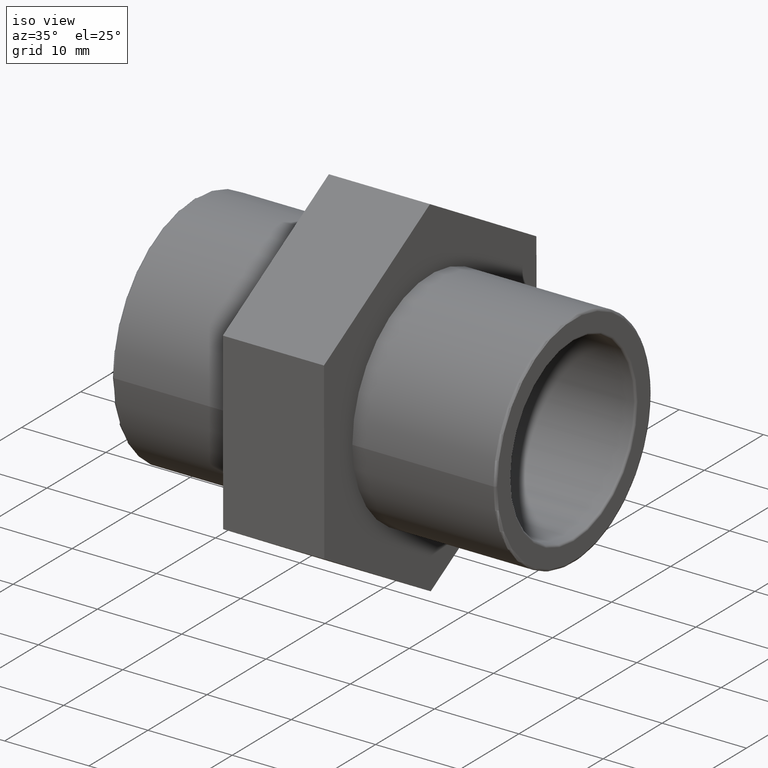
[diagram: clean part render]
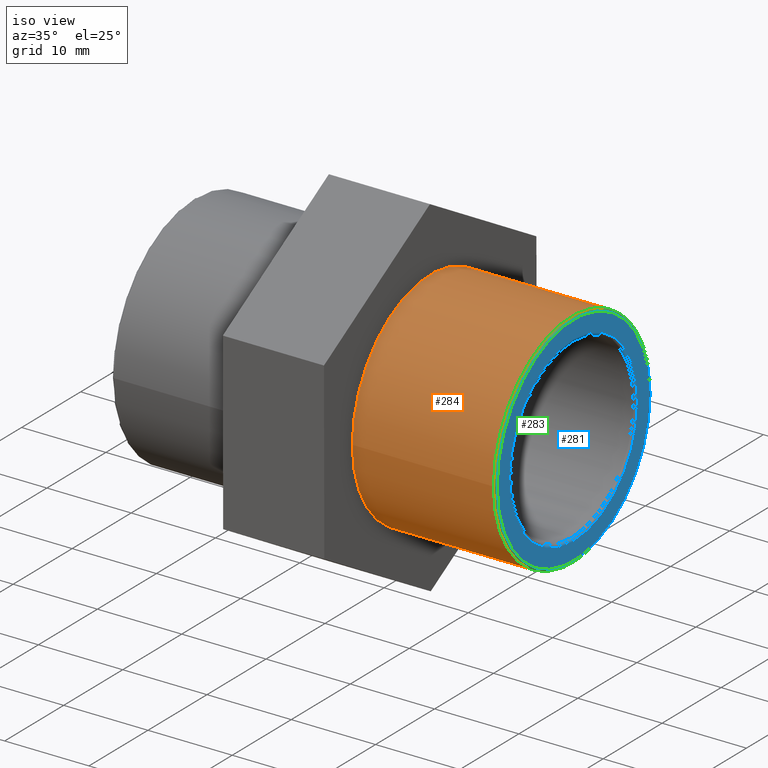
[diagram: same view with three faces highlighted in distinct colors, each labeled with its STEP entity id]
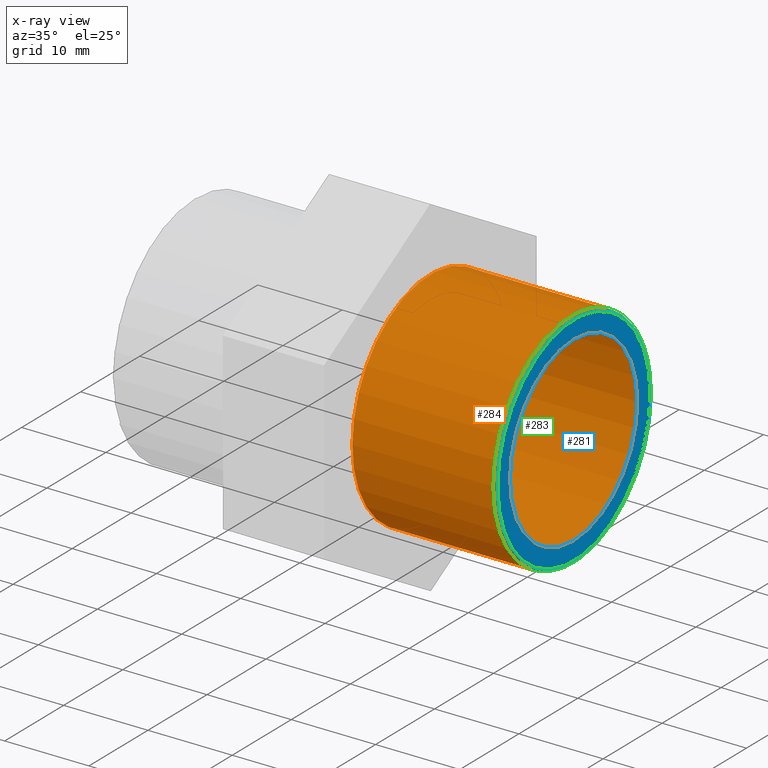
[diagram: x-ray of the same camera — body ghosted, the three highlighted faces saturated]
A machine part, iso view with three faces highlighted in distinct colors.
The next image is the same camera in x-ray (body ghosted, the three faces saturated) — at least one of them is partly hidden behind the body in this view.
Their STEP definitions:

[orange] entity #284 — the highlighted cylindrical surface (bore or boss wall) has radius 13.2205 mm, axis along (-1, -0, 0).
#52=CYLINDRICAL_SURFACE('',#312,13.2205);
#72=FACE_BOUND('',#113,.T.);
#87=FACE_OUTER_BOUND('',#112,.T.);
#112=EDGE_LOOP('',(#220));
#113=EDGE_LOOP('',(#221));
#144=CIRCLE('',#311,13.2205);
#145=CIRCLE('',#313,13.2205);
#158=VERTEX_POINT('',#441);
#159=VERTEX_POINT('',#444);
#184=EDGE_CURVE('',#158,#158,#144,.T.);
#185=EDGE_CURVE('',#159,#159,#145,.T.);
#220=ORIENTED_EDGE('',*,*,#185,.F.);
#221=ORIENTED_EDGE('',*,*,#184,.F.);
#284=ADVANCED_FACE('',(#87,#72),#52,.T.);
#311=AXIS2_PLACEMENT_3D('',#442,#356,#357);
#312=AXIS2_PLACEMENT_3D('',#443,#358,#359);
#313=AXIS2_PLACEMENT_3D('',#445,#360,#361);
#356=DIRECTION('center_axis',(1.,1.83697019872103E-16,0.));
#357=DIRECTION('ref_axis',(-1.83700530718772E-16,1.,6.12323399573677E-17));
#358=DIRECTION('center_axis',(-1.,-1.83697019872103E-16,0.));
#359=DIRECTION('ref_axis',(2.38360372416973E-16,-1.,0.));
#360=DIRECTION('center_axis',(-1.,-1.83697019872103E-16,0.));
#361=DIRECTION('ref_axis',(0.,0.,1.));
#441=CARTESIAN_POINT('',(22.23559,-13.2205,-2.42856645121914E-15));
#442=CARTESIAN_POINT('Origin',(22.23559,8.21779456522025E-15,0.));
#443=CARTESIAN_POINT('Origin',(14.,6.70494122533176E-15,0.));
#444=CARTESIAN_POINT('',(5.50000000000001,-13.2205,0.));
#445=CARTESIAN_POINT('Origin',(5.50000000000001,5.14351655641888E-15,0.));

[blue] entity #281 — the highlighted planar face has unit normal (1, 0, 0).
#56=PLANE('',#306);
#69=FACE_BOUND('',#107,.T.);
#84=FACE_OUTER_BOUND('',#106,.T.);
#106=EDGE_LOOP('',(#214));
#107=EDGE_LOOP('',(#215));
#141=CIRCLE('',#305,10.84081);
#142=CIRCLE('',#307,12.95609);
#155=VERTEX_POINT('',#432);
#156=VERTEX_POINT('',#435);
#181=EDGE_CURVE('',#155,#155,#141,.T.);
#182=EDGE_CURVE('',#156,#156,#142,.T.);
#214=ORIENTED_EDGE('',*,*,#182,.F.);
#215=ORIENTED_EDGE('',*,*,#181,.F.);
#281=ADVANCED_FACE('',(#84,#69),#56,.T.);
#305=AXIS2_PLACEMENT_3D('',#433,#344,#345);
#306=AXIS2_PLACEMENT_3D('',#434,#346,#347);
#307=AXIS2_PLACEMENT_3D('',#436,#348,#349);
#344=DIRECTION('center_axis',(1.,1.83697019872103E-16,0.));
#345=DIRECTION('ref_axis',(-1.83697019872103E-16,1.,6.12323399573677E-17));
#346=DIRECTION('center_axis',(1.,1.83697019872103E-16,0.));
#347=DIRECTION('ref_axis',(0.,0.,-1.));
#348=DIRECTION('center_axis',(-1.,-1.83697019872103E-16,0.));
#349=DIRECTION('ref_axis',(-1.83697019872103E-16,1.,6.12323399573677E-17));
#432=CARTESIAN_POINT('',(22.5,-10.84081,-1.99142448999969E-15));
#433=CARTESIAN_POINT('Origin',(22.5,8.26636589424463E-15,0.));
#434=CARTESIAN_POINT('Origin',(22.5,-13.2205,0.));
#435=CARTESIAN_POINT('',(22.5,-12.95609,7.93331707398252E-16));
#436=CARTESIAN_POINT('Origin',(22.5,8.26636589424463E-15,0.));

[green] entity #283 — the highlighted toroidal blend (fillet) surface has major radius 12.9561 mm and minor (blend) radius 0.2644 mm.
#71=FACE_BOUND('',#111,.T.);
#86=FACE_OUTER_BOUND('',#110,.T.);
#110=EDGE_LOOP('',(#218));
#111=EDGE_LOOP('',(#219));
#142=CIRCLE('',#307,12.95609);
#144=CIRCLE('',#311,13.2205);
#156=VERTEX_POINT('',#435);
#158=VERTEX_POINT('',#441);
#182=EDGE_CURVE('',#156,#156,#142,.T.);
#184=EDGE_CURVE('',#158,#158,#144,.T.);
#218=ORIENTED_EDGE('',*,*,#182,.T.);
#219=ORIENTED_EDGE('',*,*,#184,.T.);
#277=TOROIDAL_SURFACE('',#310,12.95609,0.26441);
#283=ADVANCED_FACE('',(#86,#71),#277,.T.);
#307=AXIS2_PLACEMENT_3D('',#436,#348,#349);
#310=AXIS2_PLACEMENT_3D('',#440,#354,#355);
#311=AXIS2_PLACEMENT_3D('',#442,#356,#357);
#348=DIRECTION('center_axis',(-1.,-1.83697019872103E-16,0.));
#349=DIRECTION('ref_axis',(-1.83697019872103E-16,1.,6.12323399573677E-17));
#354=DIRECTION('center_axis',(-1.,-1.83697019872103E-16,0.));
#355=DIRECTION('ref_axis',(0.,0.,1.));
#356=DIRECTION('center_axis',(1.,1.83697019872103E-16,0.));
#357=DIRECTION('ref_axis',(-1.83700530718772E-16,1.,6.12323399573677E-17));
#435=CARTESIAN_POINT('',(22.5,-12.95609,7.93331707398252E-16));
#436=CARTESIAN_POINT('Origin',(22.5,8.26636589424463E-15,0.));
#440=CARTESIAN_POINT('Origin',(22.23559,8.21779456522025E-15,0.));
#441=CARTESIAN_POINT('',(22.23559,-13.2205,-2.42856645121914E-15));
#442=CARTESIAN_POINT('Origin',(22.23559,8.21779456522025E-15,0.));